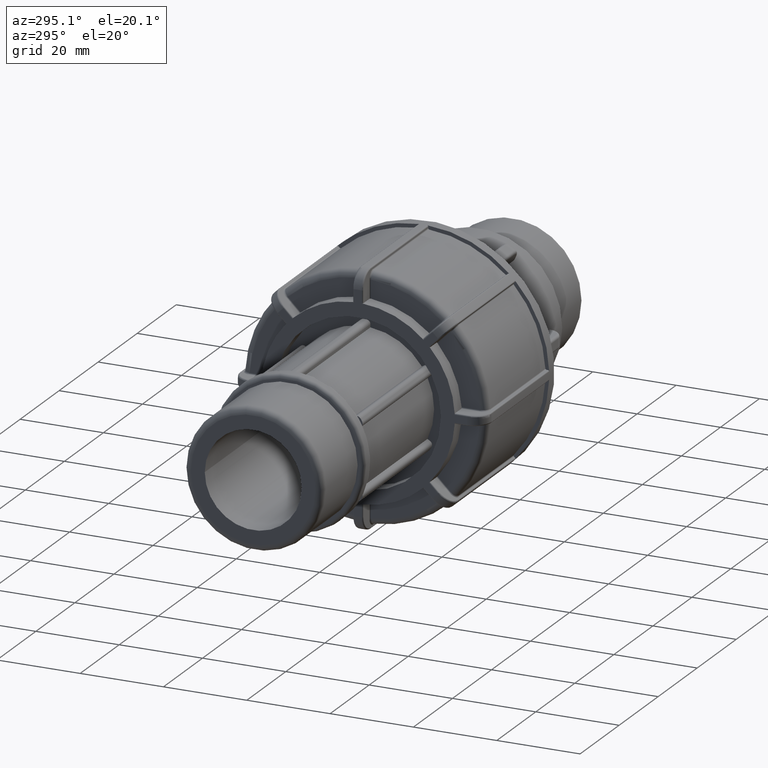
[diagram: clean part render]
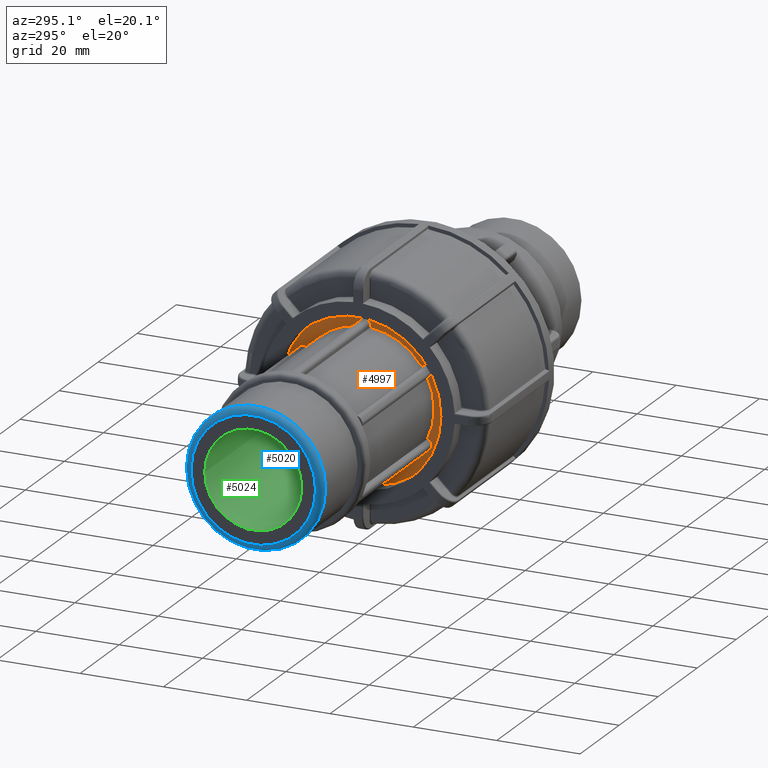
[diagram: same view with three faces highlighted in distinct colors, each labeled with its STEP entity id]
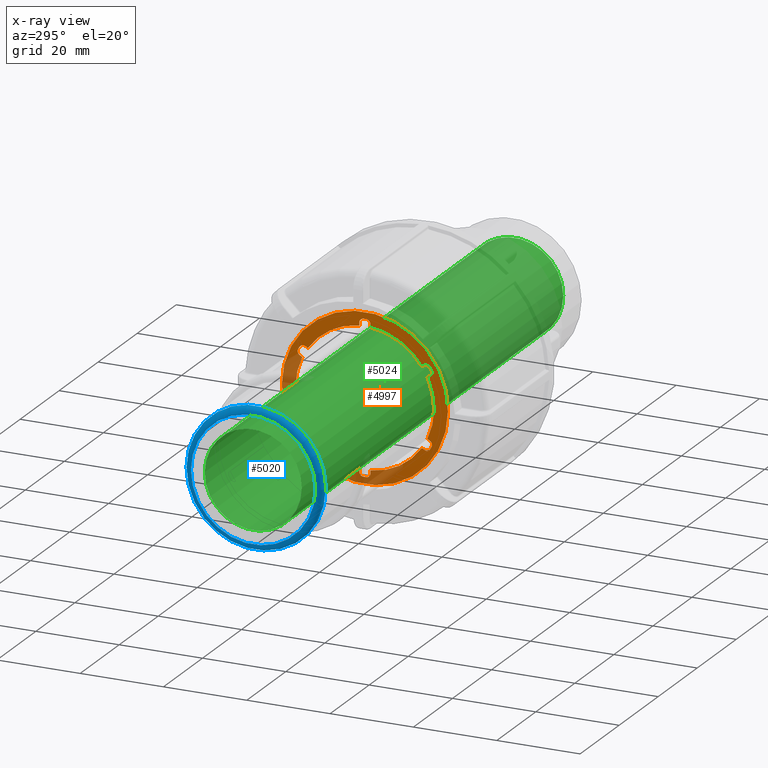
[diagram: x-ray of the same camera — body ghosted, the three highlighted faces saturated]
A machine part, auxiliary view with three faces highlighted in distinct colors.
The next image is the same camera in x-ray (body ghosted, the three faces saturated) — at least one of them is partly hidden behind the body in this view.
Their STEP definitions:

[orange] entity #4997 — the highlighted planar face has unit normal (-1, 0, 0).
#56=FACE_BOUND('',#765,.T.);
#146=PLANE('',#5555);
#458=FACE_OUTER_BOUND('',#764,.T.);
#764=EDGE_LOOP('',(#4448));
#765=EDGE_LOOP('',(#4449,#4450,#4451,#4452,#4453,#4454,#4455,#4456,#4457,
#4458,#4459,#4460,#4461,#4462,#4463,#4464,#4465,#4466,#4467,#4468,#4469,
#4470,#4471,#4472,#4473,#4474,#4475,#4476,#4477,#4478,#4479,#4480,#4481,
#4482,#4483,#4484));
#1171=LINE('',#9700,#1497);
#1179=LINE('',#9729,#1505);
#1187=LINE('',#9758,#1513);
#1195=LINE('',#9787,#1521);
#1203=LINE('',#9816,#1529);
#1212=LINE('',#9841,#1538);
#1216=LINE('',#9851,#1542);
#1220=LINE('',#9861,#1546);
#1224=LINE('',#9871,#1550);
#1228=LINE('',#9881,#1554);
#1237=LINE('',#9979,#1563);
#1238=LINE('',#9981,#1564);
#1497=VECTOR('',#6704,0.712584492749497);
#1505=VECTOR('',#6732,0.712584492749495);
#1513=VECTOR('',#6760,0.7125844927495);
#1521=VECTOR('',#6788,0.712584492749493);
#1529=VECTOR('',#6816,0.7125844927495);
#1538=VECTOR('',#6839,0.712584492749496);
#1542=VECTOR('',#6849,0.712584492749494);
#1546=VECTOR('',#6859,0.7125844927495);
#1550=VECTOR('',#6869,0.712584492749497);
#1554=VECTOR('',#6879,0.712584492749495);
#1563=VECTOR('',#6966,0.712584492749497);
#1564=VECTOR('',#6969,0.712584492749497);
#1798=CIRCLE('',#5447,1.);
#1800=CIRCLE('',#5451,1.);
#1802=CIRCLE('',#5454,18.28695);
#1804=CIRCLE('',#5457,1.);
#1806=CIRCLE('',#5461,1.);
#1808=CIRCLE('',#5464,18.28695);
#1810=CIRCLE('',#5467,1.);
#1812=CIRCLE('',#5471,1.);
#1814=CIRCLE('',#5474,18.28695);
#1816=CIRCLE('',#5477,1.);
#1818=CIRCLE('',#5481,1.);
#1820=CIRCLE('',#5484,18.28695);
#1822=CIRCLE('',#5487,1.);
#1824=CIRCLE('',#5491,1.);
#1826=CIRCLE('',#5494,18.28695);
#1832=CIRCLE('',#5511,16.6245);
#1834=CIRCLE('',#5514,16.6245);
#1836=CIRCLE('',#5517,16.6245);
#1838=CIRCLE('',#5520,16.6245);
#1840=CIRCLE('',#5523,16.6245);
#1843=CIRCLE('',#5527,16.6245);
#1851=CIRCLE('',#5543,1.);
#1852=CIRCLE('',#5545,1.);
#1856=CIRCLE('',#5554,18.28695);
#1857=CIRCLE('',#5556,19.9494);
#2253=VERTEX_POINT('',#9693);
#2254=VERTEX_POINT('',#9695);
#2255=VERTEX_POINT('',#9699);
#2260=VERTEX_POINT('',#9710);
#2261=VERTEX_POINT('',#9712);
#2264=VERTEX_POINT('',#9722);
#2265=VERTEX_POINT('',#9724);
#2266=VERTEX_POINT('',#9728);
#2271=VERTEX_POINT('',#9739);
#2272=VERTEX_POINT('',#9741);
#2275=VERTEX_POINT('',#9751);
#2276=VERTEX_POINT('',#9753);
#2277=VERTEX_POINT('',#9757);
#2282=VERTEX_POINT('',#9768);
#2283=VERTEX_POINT('',#9770);
#2286=VERTEX_POINT('',#9780);
#2287=VERTEX_POINT('',#9782);
#2288=VERTEX_POINT('',#9786);
#2293=VERTEX_POINT('',#9797);
#2294=VERTEX_POINT('',#9799);
#2297=VERTEX_POINT('',#9809);
#2298=VERTEX_POINT('',#9811);
#2299=VERTEX_POINT('',#9815);
#2304=VERTEX_POINT('',#9826);
#2305=VERTEX_POINT('',#9828);
#2308=VERTEX_POINT('',#9839);
#2311=VERTEX_POINT('',#9849);
#2314=VERTEX_POINT('',#9859);
#2317=VERTEX_POINT('',#9869);
#2320=VERTEX_POINT('',#9879);
#2321=VERTEX_POINT('',#9885);
#2324=VERTEX_POINT('',#9905);
#2331=VERTEX_POINT('',#9967);
#2332=VERTEX_POINT('',#9969);
#2333=VERTEX_POINT('',#9973);
#2334=VERTEX_POINT('',#9975);
#2338=VERTEX_POINT('',#9993);
#2941=EDGE_CURVE('',#2253,#2254,#1798,.F.);
#2943=EDGE_CURVE('',#2255,#2254,#1171,.T.);
#2949=EDGE_CURVE('',#2260,#2261,#1800,.F.);
#2952=EDGE_CURVE('',#2253,#2261,#1802,.T.);
#2955=EDGE_CURVE('',#2264,#2265,#1804,.F.);
#2957=EDGE_CURVE('',#2266,#2265,#1179,.T.);
#2963=EDGE_CURVE('',#2271,#2272,#1806,.F.);
#2966=EDGE_CURVE('',#2264,#2272,#1808,.T.);
#2969=EDGE_CURVE('',#2275,#2276,#1810,.F.);
#2971=EDGE_CURVE('',#2277,#2276,#1187,.T.);
#2977=EDGE_CURVE('',#2282,#2283,#1812,.F.);
#2980=EDGE_CURVE('',#2275,#2283,#1814,.T.);
#2983=EDGE_CURVE('',#2286,#2287,#1816,.F.);
#2985=EDGE_CURVE('',#2288,#2287,#1195,.T.);
#2991=EDGE_CURVE('',#2293,#2294,#1818,.F.);
#2994=EDGE_CURVE('',#2286,#2294,#1820,.T.);
#2997=EDGE_CURVE('',#2297,#2298,#1822,.F.);
#2999=EDGE_CURVE('',#2299,#2298,#1203,.T.);
#3005=EDGE_CURVE('',#2304,#2305,#1824,.F.);
#3008=EDGE_CURVE('',#2297,#2305,#1826,.T.);
#3012=EDGE_CURVE('',#2260,#2308,#1212,.T.);
#3017=EDGE_CURVE('',#2271,#2311,#1216,.T.);
#3022=EDGE_CURVE('',#2282,#2314,#1220,.T.);
#3027=EDGE_CURVE('',#2293,#2317,#1224,.T.);
#3032=EDGE_CURVE('',#2304,#2320,#1228,.T.);
#3034=EDGE_CURVE('',#2321,#2299,#1832,.T.);
#3037=EDGE_CURVE('',#2320,#2288,#1834,.T.);
#3039=EDGE_CURVE('',#2317,#2277,#1836,.T.);
#3041=EDGE_CURVE('',#2314,#2266,#1838,.T.);
#3043=EDGE_CURVE('',#2311,#2255,#1840,.T.);
#3047=EDGE_CURVE('',#2308,#2324,#1843,.T.);
#3062=EDGE_CURVE('',#2331,#2332,#1851,.F.);
#3065=EDGE_CURVE('',#2333,#2334,#1852,.F.);
#3067=EDGE_CURVE('',#2331,#2321,#1237,.T.);
#3068=EDGE_CURVE('',#2324,#2334,#1238,.T.);
#3072=EDGE_CURVE('',#2333,#2332,#1856,.T.);
#3073=EDGE_CURVE('',#2338,#2338,#1857,.T.);
#4448=ORIENTED_EDGE('',*,*,#3073,.F.);
#4449=ORIENTED_EDGE('',*,*,#3012,.T.);
#4450=ORIENTED_EDGE('',*,*,#3047,.T.);
#4451=ORIENTED_EDGE('',*,*,#3068,.T.);
#4452=ORIENTED_EDGE('',*,*,#3065,.F.);
#4453=ORIENTED_EDGE('',*,*,#3072,.T.);
#4454=ORIENTED_EDGE('',*,*,#3062,.F.);
#4455=ORIENTED_EDGE('',*,*,#3067,.T.);
#4456=ORIENTED_EDGE('',*,*,#3034,.T.);
#4457=ORIENTED_EDGE('',*,*,#2999,.T.);
#4458=ORIENTED_EDGE('',*,*,#2997,.F.);
#4459=ORIENTED_EDGE('',*,*,#3008,.T.);
#4460=ORIENTED_EDGE('',*,*,#3005,.F.);
#4461=ORIENTED_EDGE('',*,*,#3032,.T.);
#4462=ORIENTED_EDGE('',*,*,#3037,.T.);
#4463=ORIENTED_EDGE('',*,*,#2985,.T.);
#4464=ORIENTED_EDGE('',*,*,#2983,.F.);
#4465=ORIENTED_EDGE('',*,*,#2994,.T.);
#4466=ORIENTED_EDGE('',*,*,#2991,.F.);
#4467=ORIENTED_EDGE('',*,*,#3027,.T.);
#4468=ORIENTED_EDGE('',*,*,#3039,.T.);
#4469=ORIENTED_EDGE('',*,*,#2971,.T.);
#4470=ORIENTED_EDGE('',*,*,#2969,.F.);
#4471=ORIENTED_EDGE('',*,*,#2980,.T.);
#4472=ORIENTED_EDGE('',*,*,#2977,.F.);
#4473=ORIENTED_EDGE('',*,*,#3022,.T.);
#4474=ORIENTED_EDGE('',*,*,#3041,.T.);
#4475=ORIENTED_EDGE('',*,*,#2957,.T.);
#4476=ORIENTED_EDGE('',*,*,#2955,.F.);
#4477=ORIENTED_EDGE('',*,*,#2966,.T.);
#4478=ORIENTED_EDGE('',*,*,#2963,.F.);
#4479=ORIENTED_EDGE('',*,*,#3017,.T.);
#4480=ORIENTED_EDGE('',*,*,#3043,.T.);
#4481=ORIENTED_EDGE('',*,*,#2943,.T.);
#4482=ORIENTED_EDGE('',*,*,#2941,.F.);
#4483=ORIENTED_EDGE('',*,*,#2952,.T.);
#4484=ORIENTED_EDGE('',*,*,#2949,.F.);
#4997=ADVANCED_FACE('',(#458,#56),#146,.T.);
#5447=AXIS2_PLACEMENT_3D('',#9696,#6699,#6700);
#5451=AXIS2_PLACEMENT_3D('',#9713,#6713,#6714);
#5454=AXIS2_PLACEMENT_3D('',#9717,#6720,#6721);
#5457=AXIS2_PLACEMENT_3D('',#9725,#6727,#6728);
#5461=AXIS2_PLACEMENT_3D('',#9742,#6741,#6742);
#5464=AXIS2_PLACEMENT_3D('',#9746,#6748,#6749);
#5467=AXIS2_PLACEMENT_3D('',#9754,#6755,#6756);
#5471=AXIS2_PLACEMENT_3D('',#9771,#6769,#6770);
#5474=AXIS2_PLACEMENT_3D('',#9775,#6776,#6777);
#5477=AXIS2_PLACEMENT_3D('',#9783,#6783,#6784);
#5481=AXIS2_PLACEMENT_3D('',#9800,#6797,#6798);
#5484=AXIS2_PLACEMENT_3D('',#9804,#6804,#6805);
#5487=AXIS2_PLACEMENT_3D('',#9812,#6811,#6812);
#5491=AXIS2_PLACEMENT_3D('',#9829,#6825,#6826);
#5494=AXIS2_PLACEMENT_3D('',#9833,#6832,#6833);
#5511=AXIS2_PLACEMENT_3D('',#9886,#6886,#6887);
#5514=AXIS2_PLACEMENT_3D('',#9891,#6893,#6894);
#5517=AXIS2_PLACEMENT_3D('',#9894,#6899,#6900);
#5520=AXIS2_PLACEMENT_3D('',#9897,#6905,#6906);
#5523=AXIS2_PLACEMENT_3D('',#9900,#6911,#6912);
#5527=AXIS2_PLACEMENT_3D('',#9907,#6920,#6921);
#5543=AXIS2_PLACEMENT_3D('',#9970,#6955,#6956);
#5545=AXIS2_PLACEMENT_3D('',#9976,#6961,#6962);
#5554=AXIS2_PLACEMENT_3D('',#9991,#6982,#6983);
#5555=AXIS2_PLACEMENT_3D('',#9992,#6984,#6985);
#5556=AXIS2_PLACEMENT_3D('',#9994,#6986,#6987);
#6699=DIRECTION('center_axis',(1.,0.,0.));
#6700=DIRECTION('ref_axis',(0.,0.963411650834974,-0.26802610140699));
#6704=DIRECTION('',(0.,0.866025403784439,0.499999999999999));
#6713=DIRECTION('center_axis',(1.,0.,0.));
#6714=DIRECTION('ref_axis',(0.,0.24958841272173,0.968352014628486));
#6720=DIRECTION('center_axis',(1.,0.,0.));
#6721=DIRECTION('ref_axis',(0.,-0.866025403784439,-0.499999999999999));
#6727=DIRECTION('center_axis',(1.,0.,0.));
#6728=DIRECTION('ref_axis',(0.,0.24958841272173,-0.968352014628486));
#6732=DIRECTION('',(0.,0.866025403784438,-0.5));
#6741=DIRECTION('center_axis',(1.,0.,0.));
#6742=DIRECTION('ref_axis',(0.,0.963411650834974,0.26802610140699));
#6748=DIRECTION('center_axis',(1.,0.,0.));
#6749=DIRECTION('ref_axis',(0.,-0.866025403784438,0.5));
#6755=DIRECTION('center_axis',(1.,0.,0.));
#6756=DIRECTION('ref_axis',(0.,-0.713823238113245,-0.700325913221495));
#6760=DIRECTION('',(0.,-1.66533453693773E-16,-1.));
#6769=DIRECTION('center_axis',(1.,0.,0.));
#6770=DIRECTION('ref_axis',(0.,0.713823238113246,-0.700325913221495));
#6776=DIRECTION('center_axis',(1.,0.,0.));
#6777=DIRECTION('ref_axis',(0.,1.82133656726544E-16,1.));
#6783=DIRECTION('center_axis',(1.,0.,0.));
#6784=DIRECTION('ref_axis',(0.,-0.963411650834974,0.26802610140699));
#6788=DIRECTION('',(0.,-0.866025403784439,-0.5));
#6797=DIRECTION('center_axis',(1.,0.,0.));
#6798=DIRECTION('ref_axis',(0.,-0.249588412721728,-0.968352014628487));
#6804=DIRECTION('center_axis',(1.,0.,0.));
#6805=DIRECTION('ref_axis',(0.,0.866025403784439,0.5));
#6811=DIRECTION('center_axis',(1.,0.,0.));
#6812=DIRECTION('ref_axis',(0.,-0.24958841272173,0.968352014628486));
#6816=DIRECTION('',(0.,-0.866025403784439,0.5));
#6825=DIRECTION('center_axis',(1.,0.,0.));
#6826=DIRECTION('ref_axis',(0.,-0.963411650834974,-0.268026101406988));
#6832=DIRECTION('center_axis',(1.,0.,0.));
#6833=DIRECTION('ref_axis',(0.,0.866025403784439,-0.5));
#6839=DIRECTION('',(0.,-0.866025403784439,-0.499999999999999));
#6849=DIRECTION('',(0.,-0.866025403784438,0.5));
#6859=DIRECTION('',(0.,1.66533453693773E-16,1.));
#6869=DIRECTION('',(0.,0.866025403784439,0.5));
#6879=DIRECTION('',(0.,0.866025403784439,-0.5));
#6886=DIRECTION('center_axis',(1.,0.,0.));
#6887=DIRECTION('ref_axis',(0.,0.,-1.));
#6893=DIRECTION('center_axis',(1.,0.,0.));
#6894=DIRECTION('ref_axis',(0.,0.,-1.));
#6899=DIRECTION('center_axis',(1.,0.,0.));
#6900=DIRECTION('ref_axis',(0.,0.,-1.));
#6905=DIRECTION('center_axis',(1.,0.,0.));
#6906=DIRECTION('ref_axis',(0.,0.,-1.));
#6911=DIRECTION('center_axis',(1.,0.,0.));
#6912=DIRECTION('ref_axis',(0.,0.,-1.));
#6920=DIRECTION('center_axis',(1.,0.,0.));
#6921=DIRECTION('ref_axis',(0.,0.,-1.));
#6955=DIRECTION('center_axis',(1.,0.,0.));
#6956=DIRECTION('ref_axis',(0.,-0.713823238113246,0.700325913221495));
#6961=DIRECTION('center_axis',(1.,0.,0.));
#6962=DIRECTION('ref_axis',(0.,0.713823238113246,0.700325913221494));
#6966=DIRECTION('',(0.,0.,-1.));
#6969=DIRECTION('',(0.,0.,1.));
#6982=DIRECTION('center_axis',(1.,0.,0.));
#6983=DIRECTION('ref_axis',(0.,0.,-1.));
#6984=DIRECTION('center_axis',(-1.,0.,0.));
#6985=DIRECTION('ref_axis',(0.,0.,1.));
#6986=DIRECTION('center_axis',(1.,0.,0.));
#6987=DIRECTION('ref_axis',(0.,0.,-1.));
#9693=CARTESIAN_POINT('',(-76.8,16.0086017302102,8.83952549326094));
#9695=CARTESIAN_POINT('',(-76.8,15.6331904817401,7.49012120490248));
#9696=CARTESIAN_POINT('Origin',(-76.8,15.1331904817401,8.35614660868692));
#9699=CARTESIAN_POINT('',(-76.8,15.0160742086762,7.13382895852773));
#9700=CARTESIAN_POINT('',(-76.8,15.3215521043381,7.31019670381961));
#9710=CARTESIAN_POINT('',(-76.8,14.3032304817401,9.79367949693678));
#9712=CARTESIAN_POINT('',(-76.8,15.6595544996693,9.44409303079908));
#9713=CARTESIAN_POINT('Origin',(-76.8,14.8032304817401,8.92765409315234));
#9717=CARTESIAN_POINT('Origin',(-76.8,0.,0.));
#9722=CARTESIAN_POINT('',(-76.8,15.6595544996693,-9.44409303079911));
#9724=CARTESIAN_POINT('',(-76.8,14.3032304817401,-9.7936794969368));
#9725=CARTESIAN_POINT('Origin',(-76.8,14.8032304817401,-8.92765409315236));
#9728=CARTESIAN_POINT('',(-76.8,13.6861142086762,-9.43738725056205));
#9729=CARTESIAN_POINT('',(-76.8,13.9915921043381,-9.61375499585392));
#9739=CARTESIAN_POINT('',(-76.8,15.6331904817401,-7.4901212049025));
#9741=CARTESIAN_POINT('',(-76.8,16.0086017302102,-8.83952549326096));
#9742=CARTESIAN_POINT('Origin',(-76.8,15.1331904817401,-8.35614660868694));
#9746=CARTESIAN_POINT('Origin',(-76.8,0.,0.));
#9751=CARTESIAN_POINT('',(-76.8,-0.34904723054096,-18.2836185240601));
#9753=CARTESIAN_POINT('',(-76.8,-1.32996,-17.2838007018393));
#9754=CARTESIAN_POINT('Origin',(-76.8,-0.329960000000002,-17.2838007018393));
#9757=CARTESIAN_POINT('',(-76.8,-1.32996,-16.5712162090898));
#9758=CARTESIAN_POINT('',(-76.8,-1.32996,-8.28560810454489));
#9768=CARTESIAN_POINT('',(-76.8,1.32996,-17.2838007018393));
#9770=CARTESIAN_POINT('',(-76.8,0.349047230540953,-18.2836185240601));
#9771=CARTESIAN_POINT('Origin',(-76.8,0.329959999999996,-17.2838007018393));
#9775=CARTESIAN_POINT('Origin',(-76.8,0.,0.));
#9780=CARTESIAN_POINT('',(-76.8,-16.0086017302102,-8.83952549326095));
#9782=CARTESIAN_POINT('',(-76.8,-15.6331904817401,-7.49012120490248));
#9783=CARTESIAN_POINT('Origin',(-76.8,-15.1331904817401,-8.35614660868693));
#9786=CARTESIAN_POINT('',(-76.8,-15.0160742086762,-7.13382895852774));
#9787=CARTESIAN_POINT('',(-76.8,-0.359502104338107,1.32814689130903));
#9797=CARTESIAN_POINT('',(-76.8,-14.3032304817401,-9.79367949693679));
#9799=CARTESIAN_POINT('',(-76.8,-15.6595544996693,-9.44409303079909));
#9800=CARTESIAN_POINT('Origin',(-76.8,-14.8032304817401,-8.92765409315235));
#9804=CARTESIAN_POINT('Origin',(-76.8,0.,0.));
#9809=CARTESIAN_POINT('',(-76.8,-15.6595544996693,9.4440930307991));
#9811=CARTESIAN_POINT('',(-76.8,-14.3032304817401,9.7936794969368));
#9812=CARTESIAN_POINT('Origin',(-76.8,-14.8032304817401,8.92765409315236));
#9815=CARTESIAN_POINT('',(-76.8,-13.6861142086762,9.43738725056205));
#9816=CARTESIAN_POINT('',(-76.8,0.970457895661891,0.975411400725278));
#9826=CARTESIAN_POINT('',(-76.8,-15.6331904817401,7.49012120490249));
#9828=CARTESIAN_POINT('',(-76.8,-16.0086017302102,8.83952549326096));
#9829=CARTESIAN_POINT('Origin',(-76.8,-15.1331904817401,8.35614660868693));
#9833=CARTESIAN_POINT('Origin',(-76.8,0.,0.));
#9839=CARTESIAN_POINT('',(-76.8,13.6861142086762,9.43738725056203));
#9841=CARTESIAN_POINT('',(-76.8,14.7135574252146,10.0305818682075));
#9849=CARTESIAN_POINT('',(-76.8,15.0160742086762,-7.13382895852775));
#9851=CARTESIAN_POINT('',(-76.8,16.0435174252146,-7.72702357617323));
#9859=CARTESIAN_POINT('',(-76.8,1.32996,-16.5712162090898));
#9861=CARTESIAN_POINT('',(-76.8,1.32996,-9.11926184925211));
#9869=CARTESIAN_POINT('',(-76.8,-13.6861142086762,-9.43738725056204));
#9871=CARTESIAN_POINT('',(-76.8,0.248492574785416,-1.39223827307889));
#9879=CARTESIAN_POINT('',(-76.8,-15.0160742086762,7.13382895852774));
#9881=CARTESIAN_POINT('',(-76.8,-1.08146742521459,-0.911320018955417));
#9885=CARTESIAN_POINT('',(-76.8,-1.32996,16.5712162090898));
#9886=CARTESIAN_POINT('Origin',(-76.8,0.,0.));
#9891=CARTESIAN_POINT('Origin',(-76.8,0.,0.));
#9894=CARTESIAN_POINT('Origin',(-76.8,0.,0.));
#9897=CARTESIAN_POINT('Origin',(-76.8,0.,0.));
#9900=CARTESIAN_POINT('Origin',(-76.8,0.,0.));
#9905=CARTESIAN_POINT('',(-76.8,1.32996,16.5712162090898));
#9907=CARTESIAN_POINT('Origin',(-76.8,0.,0.));
#9967=CARTESIAN_POINT('',(-76.8,-1.32996,17.2838007018393));
#9969=CARTESIAN_POINT('',(-76.8,-0.349047230540957,18.28361852406));
#9970=CARTESIAN_POINT('Origin',(-76.8,-0.32996,17.2838007018393));
#9973=CARTESIAN_POINT('',(-76.8,0.349047230540955,18.28361852406));
#9975=CARTESIAN_POINT('',(-76.8,1.32996,17.2838007018393));
#9976=CARTESIAN_POINT('Origin',(-76.8,0.329959999999998,17.2838007018393));
#9979=CARTESIAN_POINT('',(-76.8,-1.32996,9.11926184925211));
#9981=CARTESIAN_POINT('',(-76.8,1.32996,8.28560810454489));
#9991=CARTESIAN_POINT('Origin',(-76.8,0.,0.));
#9992=CARTESIAN_POINT('Origin',(-76.8,19.9494,0.));
#9993=CARTESIAN_POINT('',(-76.8,19.9494,0.));
#9994=CARTESIAN_POINT('Origin',(-76.8,0.,0.));

[blue] entity #5020 — the highlighted toroidal blend (fillet) surface has major radius 14.962 mm and minor (blend) radius 1.6624 mm.
#60=FACE_BOUND('',#792,.T.);
#189=TOROIDAL_SURFACE('',#5594,14.96205,1.66245);
#481=FACE_OUTER_BOUND('',#791,.T.);
#791=EDGE_LOOP('',(#4575));
#792=EDGE_LOOP('',(#4576));
#1873=CIRCLE('',#5595,14.96205);
#1874=CIRCLE('',#5596,16.6245);
#2342=VERTEX_POINT('',#10037);
#2343=VERTEX_POINT('',#10039);
#3090=EDGE_CURVE('',#2342,#2342,#1873,.T.);
#3091=EDGE_CURVE('',#2343,#2343,#1874,.T.);
#4575=ORIENTED_EDGE('',*,*,#3090,.T.);
#4576=ORIENTED_EDGE('',*,*,#3091,.T.);
#5020=ADVANCED_FACE('',(#481,#60),#189,.T.);
#5594=AXIS2_PLACEMENT_3D('',#10036,#7063,#7064);
#5595=AXIS2_PLACEMENT_3D('',#10038,#7065,#7066);
#5596=AXIS2_PLACEMENT_3D('',#10040,#7067,#7068);
#7063=DIRECTION('center_axis',(1.,0.,0.));
#7064=DIRECTION('ref_axis',(0.,0.,-1.));
#7065=DIRECTION('center_axis',(1.,0.,0.));
#7066=DIRECTION('ref_axis',(0.,-1.,1.83697019872103E-16));
#7067=DIRECTION('center_axis',(-1.,0.,0.));
#7068=DIRECTION('ref_axis',(0.,-1.,1.83697019872103E-16));
#10036=CARTESIAN_POINT('Origin',(-132.33755,0.,0.));
#10037=CARTESIAN_POINT('',(-134.,14.96205,-9.16161332059133E-16));
#10038=CARTESIAN_POINT('Origin',(-134.,0.,0.));
#10039=CARTESIAN_POINT('',(-132.33755,16.6245,-5.08978517810629E-15));
#10040=CARTESIAN_POINT('Origin',(-132.33755,0.,0.));

[green] entity #5024 — the highlighted cylindrical surface (bore or boss wall) has radius 11.6372 mm, axis along (1, 0, 0).
#63=FACE_BOUND('',#799,.T.);
#485=FACE_OUTER_BOUND('',#798,.T.);
#798=EDGE_LOOP('',(#4585));
#799=EDGE_LOOP('',(#4586));
#1872=CIRCLE('',#5593,11.63715);
#1875=CIRCLE('',#5598,11.63715);
#2341=VERTEX_POINT('',#10034);
#2344=VERTEX_POINT('',#10042);
#3089=EDGE_CURVE('',#2341,#2341,#1872,.T.);
#3092=EDGE_CURVE('',#2344,#2344,#1875,.T.);
#4585=ORIENTED_EDGE('',*,*,#3089,.T.);
#4586=ORIENTED_EDGE('',*,*,#3092,.F.);
#4727=CYLINDRICAL_SURFACE('',#5601,11.63715);
#5024=ADVANCED_FACE('',(#485,#63),#4727,.F.);
#5593=AXIS2_PLACEMENT_3D('',#10035,#7061,#7062);
#5598=AXIS2_PLACEMENT_3D('',#10043,#7071,#7072);
#5601=AXIS2_PLACEMENT_3D('',#10046,#7077,#7078);
#7061=DIRECTION('center_axis',(1.,0.,0.));
#7062=DIRECTION('ref_axis',(0.,0.,-1.));
#7071=DIRECTION('center_axis',(1.,0.,0.));
#7072=DIRECTION('ref_axis',(0.,0.,-1.));
#7077=DIRECTION('center_axis',(1.,0.,0.));
#7078=DIRECTION('ref_axis',(0.,1.,0.));
#10034=CARTESIAN_POINT('',(1.53830668899098E-15,11.63715,0.));
#10035=CARTESIAN_POINT('Origin',(0.,0.,0.));
#10042=CARTESIAN_POINT('',(-134.,11.63715,0.));
#10043=CARTESIAN_POINT('Origin',(-134.,0.,0.));
#10046=CARTESIAN_POINT('Origin',(-67.,0.,0.));